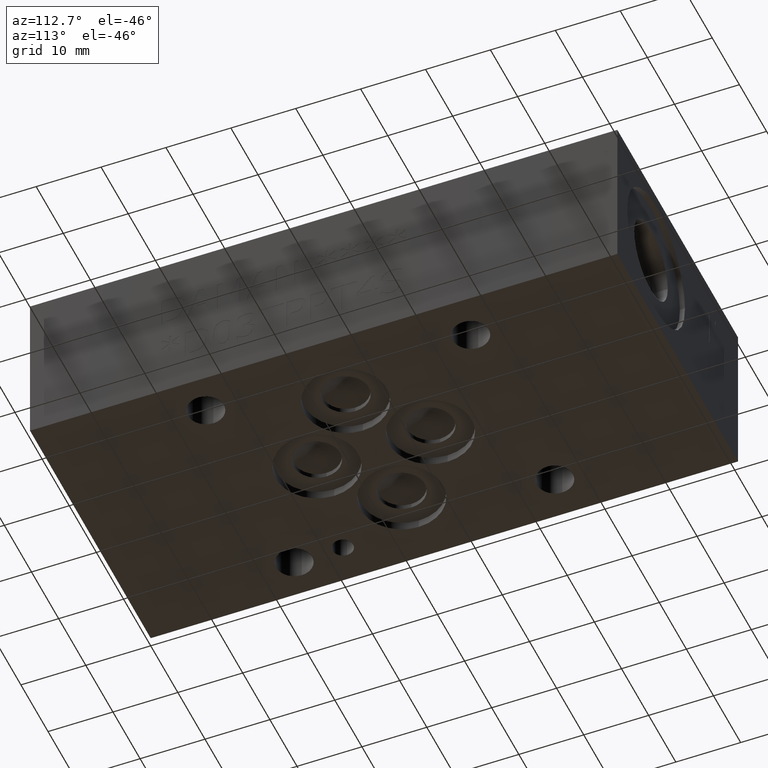
[diagram: clean part render]
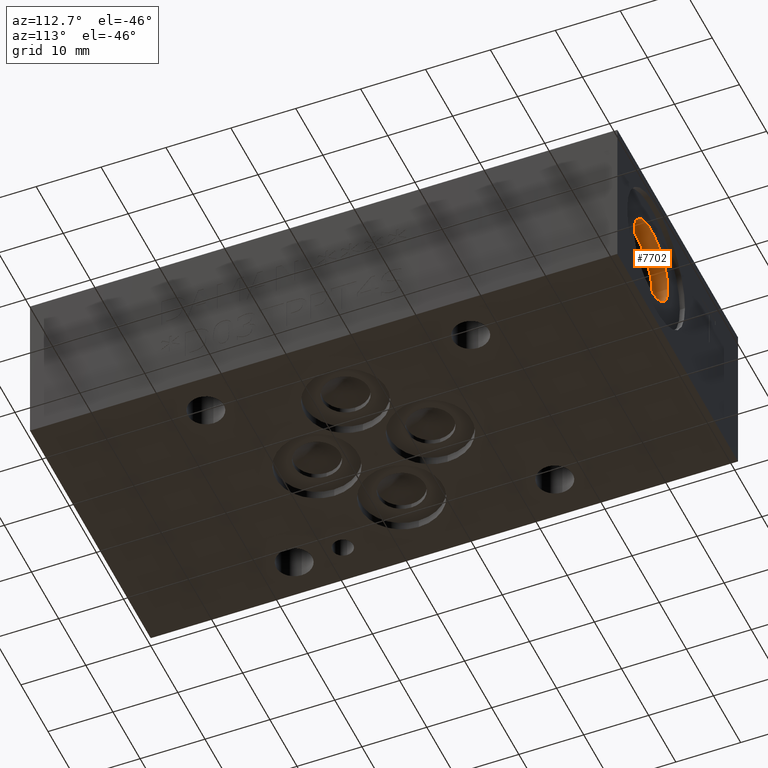
[diagram: same view with one face highlighted and labeled with its STEP entity id]
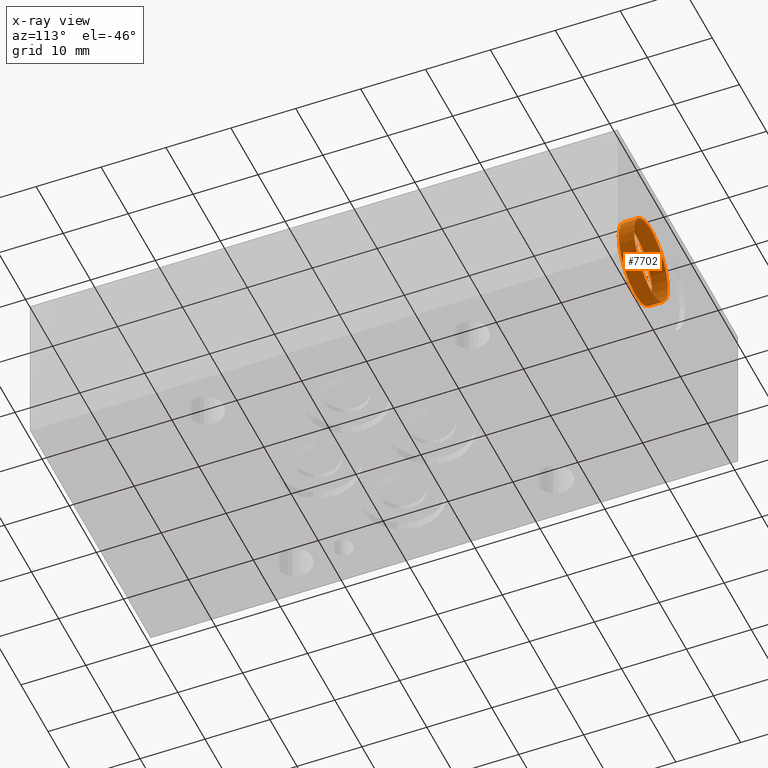
[diagram: x-ray of the same camera — body ghosted, the highlighted face saturated]
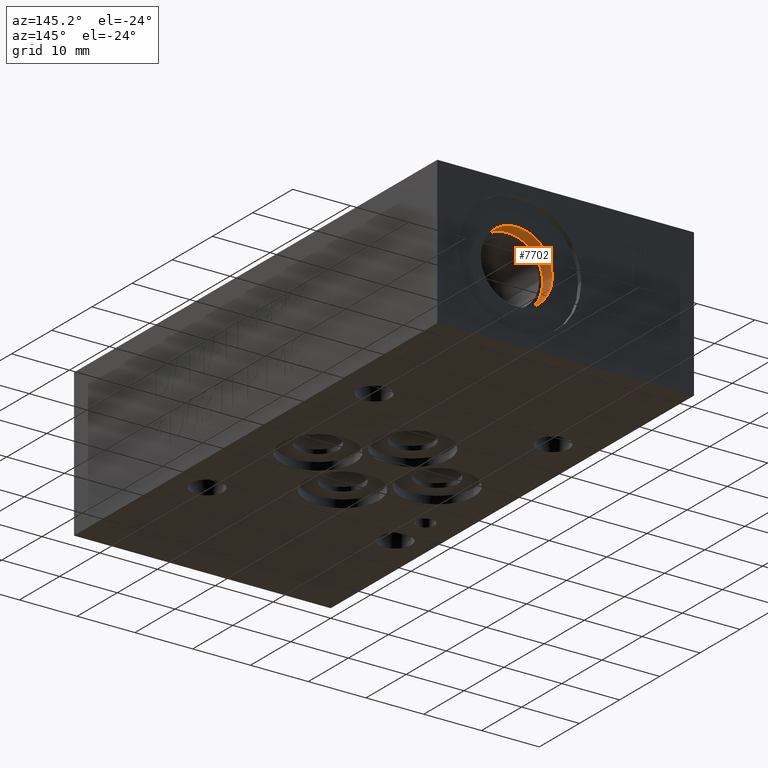
[diagram: same view with one face highlighted and labeled with its STEP entity id]
A machine part, auxiliary view. The second image highlights one B-rep face of the part: STEP entity #7702.
The next image is the same camera in x-ray: the body ghosted, the highlighted face saturated — about 0% of this face is hidden behind the body in this view.
A second angle (auxiliary view) of the same face is appended — the face is thin or edge-on in the first view.
In plain terms, the highlighted cylindrical surface (bore or boss wall) has radius 6.1976 mm, axis along (0, 1, 0).
Its self-contained STEP definition (entity closure, byte-faithful):
#28=CYLINDRICAL_SURFACE('',#8062,6.1976);
#88=CIRCLE('',#8059,6.1976);
#90=CIRCLE('',#8063,6.1976);
#807=FACE_OUTER_BOUND('',#1243,.T.);
#1243=EDGE_LOOP('',(#6588,#6589,#6590,#6591));
#2080=LINE('',#12823,#2888);
#2888=VECTOR('',#9527,6.1976);
#3573=VERTEX_POINT('',#12815);
#3575=VERTEX_POINT('',#12822);
#4593=EDGE_CURVE('',#3573,#3573,#88,.T.);
#4596=EDGE_CURVE('',#3573,#3575,#2080,.T.);
#4597=EDGE_CURVE('',#3575,#3575,#90,.T.);
#6588=ORIENTED_EDGE('',*,*,#4593,.T.);
#6589=ORIENTED_EDGE('',*,*,#4596,.T.);
#6590=ORIENTED_EDGE('',*,*,#4597,.F.);
#6591=ORIENTED_EDGE('',*,*,#4596,.F.);
#7702=ADVANCED_FACE('',(#807),#28,.F.);
#8059=AXIS2_PLACEMENT_3D('',#12816,#9518,#9519);
#8062=AXIS2_PLACEMENT_3D('',#12821,#9525,#9526);
#8063=AXIS2_PLACEMENT_3D('',#12824,#9528,#9529);
#9518=DIRECTION('center_axis',(0.,1.,0.));
#9519=DIRECTION('ref_axis',(1.,0.,0.));
#9525=DIRECTION('center_axis',(0.,1.,0.));
#9526=DIRECTION('ref_axis',(1.,0.,0.));
#9527=DIRECTION('',(0.,-1.,0.));
#9528=DIRECTION('center_axis',(0.,1.,0.));
#9529=DIRECTION('ref_axis',(1.,0.,0.));
#12815=CARTESIAN_POINT('',(23.9776,89.7128,12.7));
#12816=CARTESIAN_POINT('Origin',(30.1752,89.7128,12.7));
#12821=CARTESIAN_POINT('Origin',(30.1752,88.9127,12.7));
#12822=CARTESIAN_POINT('',(23.9776,87.3252,12.7));
#12823=CARTESIAN_POINT('',(23.9776,88.9127,12.7));
#12824=CARTESIAN_POINT('Origin',(30.1752,87.3252,12.7));